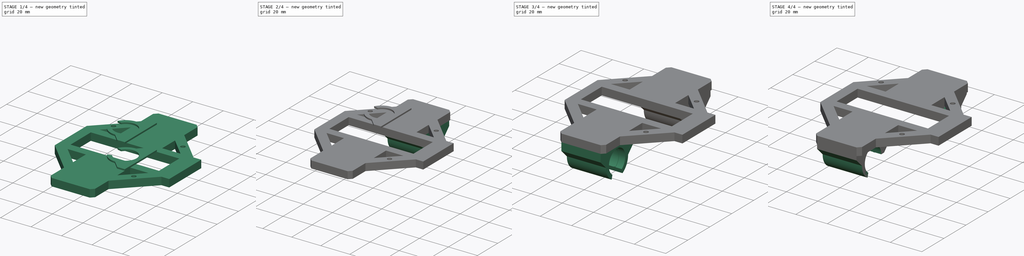
[diagram: build sequence overview — one tinted view per stage of 4, left to right]
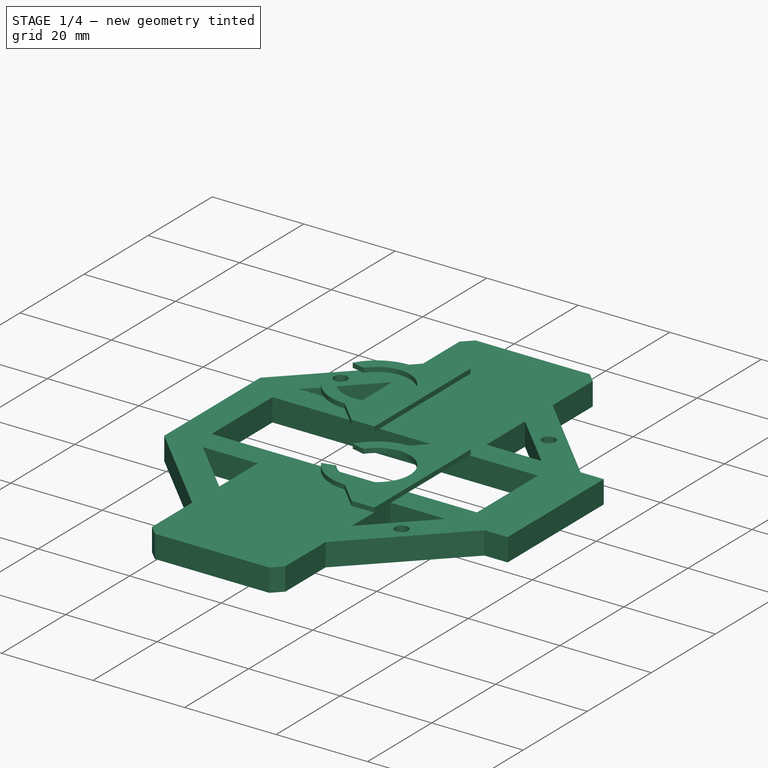
[diagram: stage 1 of 4 — iso view after this stage's code; geometry added in this stage tinted green]
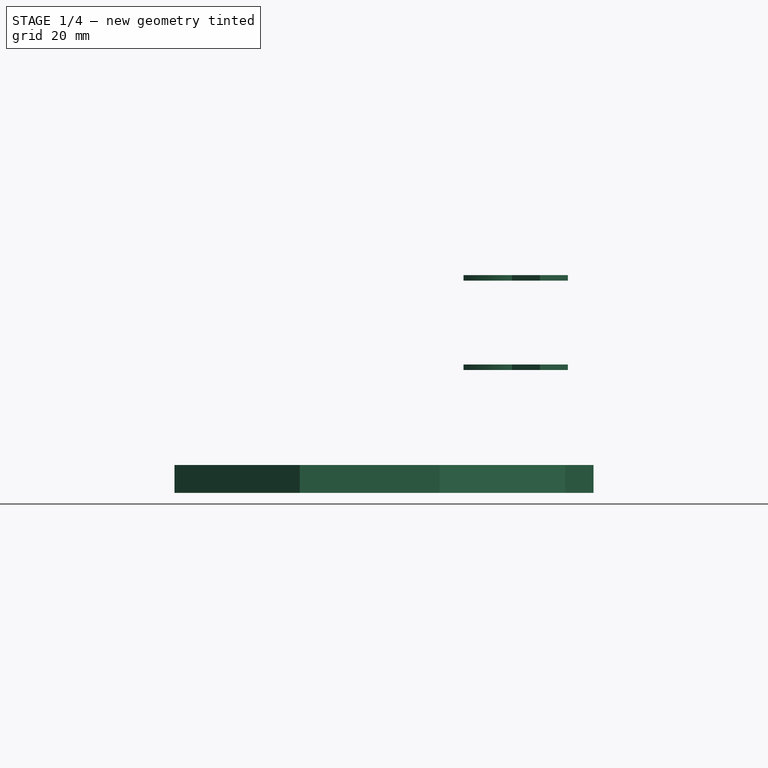
[diagram: stage 1 of 4 — front view after this stage's code; geometry added in this stage tinted green]
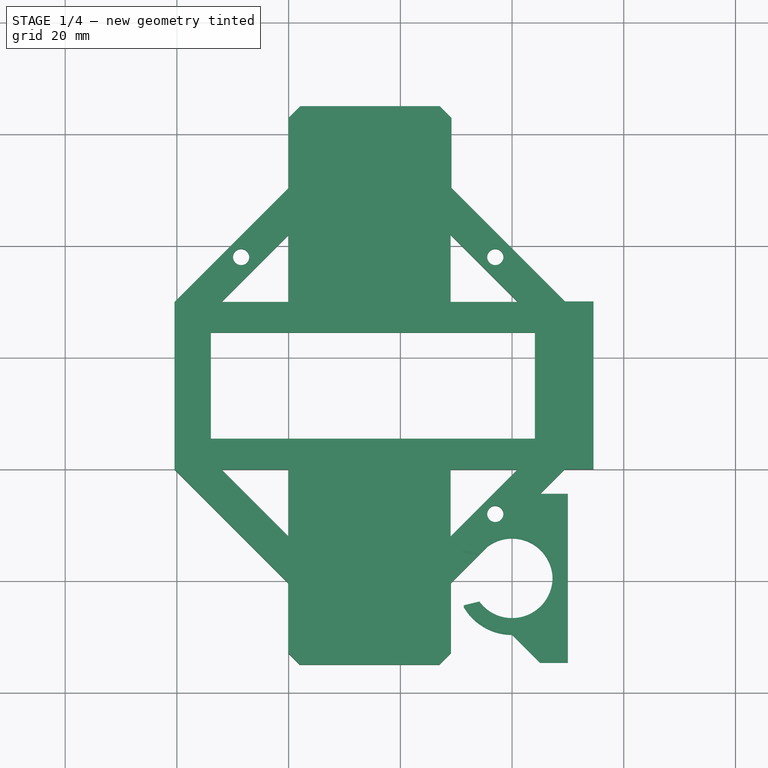
[diagram: stage 1 of 4 — top view after this stage's code; geometry added in this stage tinted green]
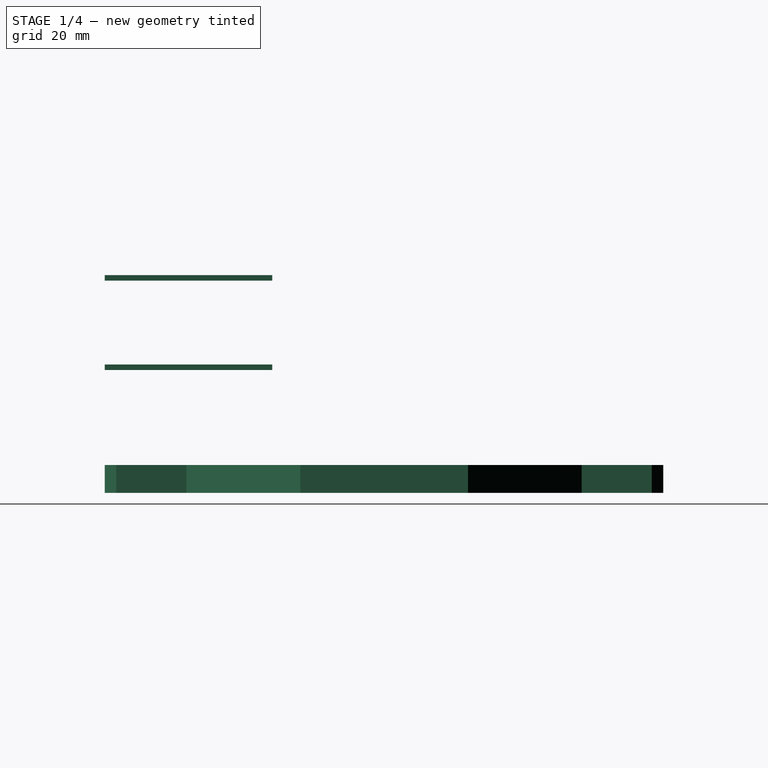
[diagram: stage 1 of 4 — right view after this stage's code; geometry added in this stage tinted green]
FCSTD DOCUMENT  (FreeCAD 0.15R4671 (Git))
Label: XCarrageV6
License: All rights reserved
LicenseURL: http://en.wikipedia.org/wiki/All_rights_reserved
objects: Sketcher::SketchObject×8, PartDesign::Pad×8, Part::MultiFuse×3, Part::Cut×1
note: 28 computed .brp shape members not serialized (recipe doc carries the construction recipe); baked Part::Feature solids carry a one-line shape summary decoded from their .brp

FEATURE [Sketcher::SketchObject] Sketch004  label="Base016"
  Placement = pos=(0,0,32) rot=(0,0,1;0rad)
  sketch-geometry (10):
    g0: LineSegment StartX=-5.8767 StartY=4.24581 StartZ=0 EndX=-8.70018 EndY=4.9302 EndZ=0
    g1: LineSegment StartX=-5.84944 StartY=-4.28328 StartZ=0 EndX=-8.67952 EndY=-4.96648 EndZ=0
    g2: ArcOfCircle CenterX=0 CenterY=0 CenterZ=0 NormalX=0 NormalY=0 NormalZ=1 Radius=10 StartAngle=1.5708 EndAngle=2.62603
    g3: ArcOfCircle CenterX=0 CenterY=0 CenterZ=0 NormalX=0 NormalY=0 NormalZ=1 Radius=10 StartAngle=3.66133 EndAngle=4.71239
    g4: ArcOfCircle CenterX=0 CenterY=0 CenterZ=0 NormalX=0 NormalY=0 NormalZ=1 Radius=7.25 StartAngle=3.77364 EndAngle=8.79912
    g5: LineSegment StartX=4.98503 StartY=-15 StartZ=0 EndX=10 EndY=-15 EndZ=0
    g6: LineSegment StartX=10 StartY=-15 StartZ=0 EndX=10 EndY=15 EndZ=0
    g7: LineSegment StartX=10 StartY=15 StartZ=0 EndX=4.98503 EndY=15 EndZ=0
    g8: LineSegment StartX=-1e-12 StartY=10 StartZ=0 EndX=4.98503 EndY=15 EndZ=0
    g9: LineSegment StartX=3e-12 StartY=-10 StartZ=0 EndX=4.98503 EndY=-15 EndZ=0
  constraints (23):
    c: PointOnObject(g2,g-2)
    c: PointOnObject(g3,g-2)
    c: Coincident(g2,g-1)
    c: Coincident(g2,g0)
    c: Coincident(g3,g-1)
    c: Coincident(g3,g1)
    c: Coincident(g4,g-1)
    c: Coincident(g4,g0)
    c: Coincident(g4,g1)
    c: Radius(g4) = 7.25
    c: Horizontal(g5)
    c: Coincident(g6,g5)
    c: Vertical(g6)
    c: Coincident(g7,g6)
    c: Horizontal(g7)
    c: DistanceY(g6,g5) = -30
    c: DistanceY(g-1,g6) = 15
    c: Coincident(g8,g2)
    c: Coincident(g8,g7)
    c: Coincident(g9,g3)
    c: Coincident(g9,g5)
    c: DistanceX(g-1,g5) = 4.98503
    c: DistanceX(g5,g7) = 0
FEATURE [PartDesign::Pad] Pad004  label="BearingRidge008"
  Length = 1
  Length2 = 100
  Placement = pos=(0,0,32) rot=(0,0,1;0rad)
  Sketch = -> Sketch004
  Type = 0
FEATURE [Sketcher::SketchObject] Sketch005  label="Base017"
  Placement = pos=(0,0,48) rot=(0,0,1;0rad)
  sketch-geometry (10):
    g0: LineSegment StartX=-5.8767 StartY=4.24581 StartZ=0 EndX=-8.70018 EndY=4.9302 EndZ=0
    g1: LineSegment StartX=-5.84944 StartY=-4.28328 StartZ=0 EndX=-8.67952 EndY=-4.96648 EndZ=0
    g2: ArcOfCircle CenterX=0 CenterY=0 CenterZ=0 NormalX=0 NormalY=0 NormalZ=1 Radius=10 StartAngle=1.5708 EndAngle=2.62603
    g3: ArcOfCircle CenterX=0 CenterY=0 CenterZ=0 NormalX=0 NormalY=0 NormalZ=1 Radius=10 StartAngle=3.66133 EndAngle=4.71239
    g4: ArcOfCircle CenterX=0 CenterY=0 CenterZ=0 NormalX=0 NormalY=0 NormalZ=1 Radius=7.25 StartAngle=3.77364 EndAngle=8.79912
    g5: LineSegment StartX=4.98503 StartY=-15 StartZ=0 EndX=10 EndY=-15 EndZ=0
    g6: LineSegment StartX=10 StartY=-15 StartZ=0 EndX=10 EndY=15 EndZ=0
    g7: LineSegment StartX=10 StartY=15 StartZ=0 EndX=4.98503 EndY=15 EndZ=0
    g8: LineSegment StartX=-1e-12 StartY=10 StartZ=0 EndX=4.98503 EndY=15 EndZ=0
    g9: LineSegment StartX=3e-12 StartY=-10 StartZ=0 EndX=4.98503 EndY=-15 EndZ=0
  constraints (23):
    c: PointOnObject(g2,g-2)
    c: PointOnObject(g3,g-2)
    c: Coincident(g2,g-1)
    c: Coincident(g2,g0)
    c: Coincident(g3,g-1)
    c: Coincident(g3,g1)
    c: Coincident(g4,g-1)
    c: Coincident(g4,g0)
    c: Coincident(g4,g1)
    c: Radius(g4) = 7.25
    c: Horizontal(g5)
    c: Coincident(g6,g5)
    c: Vertical(g6)
    c: Coincident(g7,g6)
    c: Horizontal(g7)
    c: DistanceY(g6,g5) = -30
    c: DistanceY(g-1,g6) = 15
    c: Coincident(g8,g2)
    c: Coincident(g8,g7)
    c: Coincident(g9,g3)
    c: Coincident(g9,g5)
    c: DistanceX(g-1,g5) = 4.98503
    c: DistanceX(g5,g7) = 0
FEATURE [PartDesign::Pad] Pad005  label="BearingRidge009"
  Length = 1
  Length2 = 100
  Placement = pos=(0,0,48) rot=(0,0,1;0rad)
  Sketch = -> Sketch005
  Type = 0
FEATURE [PartDesign::Pad] Pad008
  Length = 5
  Length2 = 100
  Placement = pos=(0,0,10) rot=(0,0,1;0rad)
  Sketch = -> Sketch006
  Type = 0
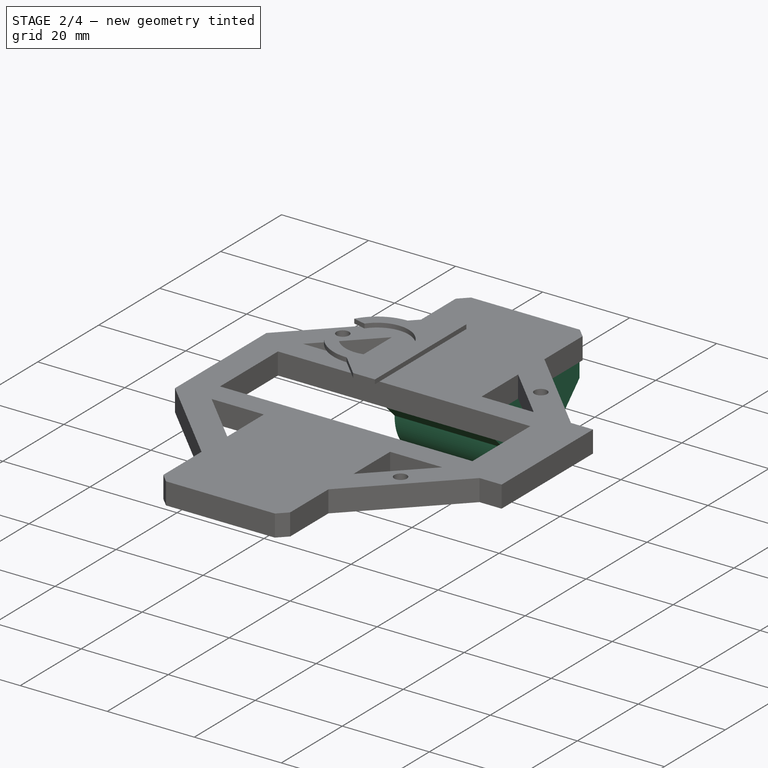
[diagram: stage 2 of 4 — iso view after this stage's code; geometry added in this stage tinted green]
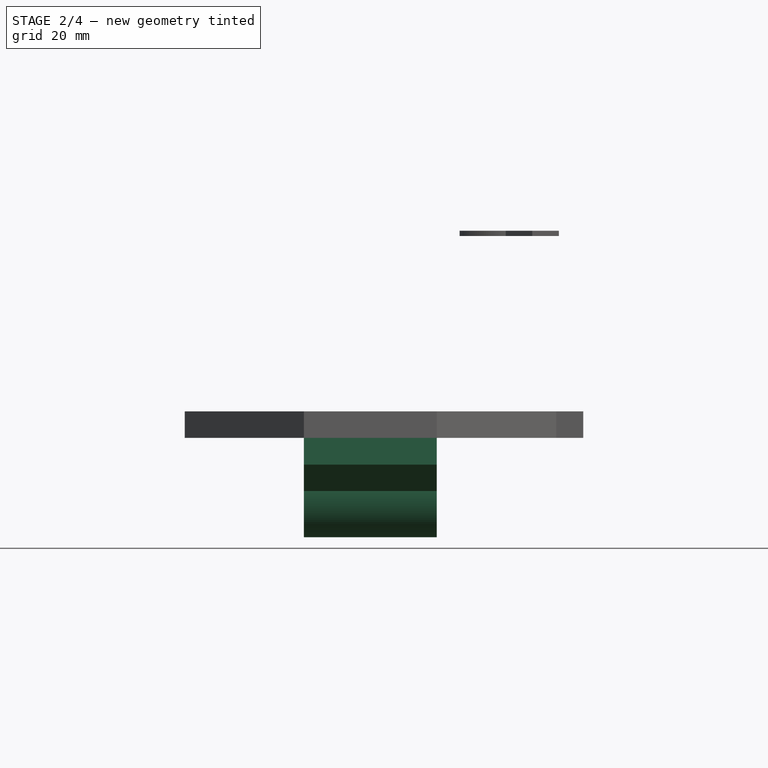
[diagram: stage 2 of 4 — front view after this stage's code; geometry added in this stage tinted green]
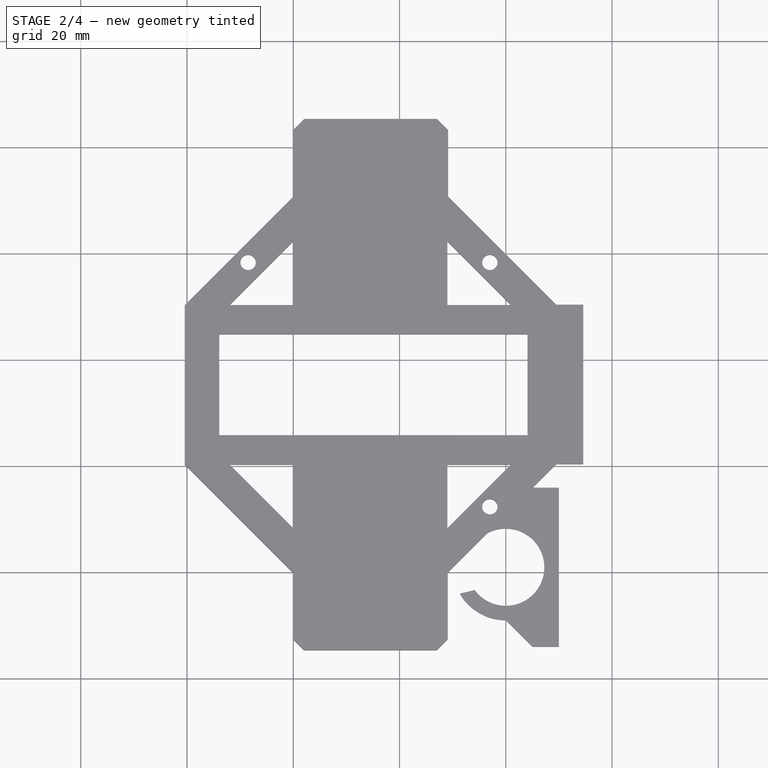
[diagram: stage 2 of 4 — top view after this stage's code; geometry added in this stage tinted green]
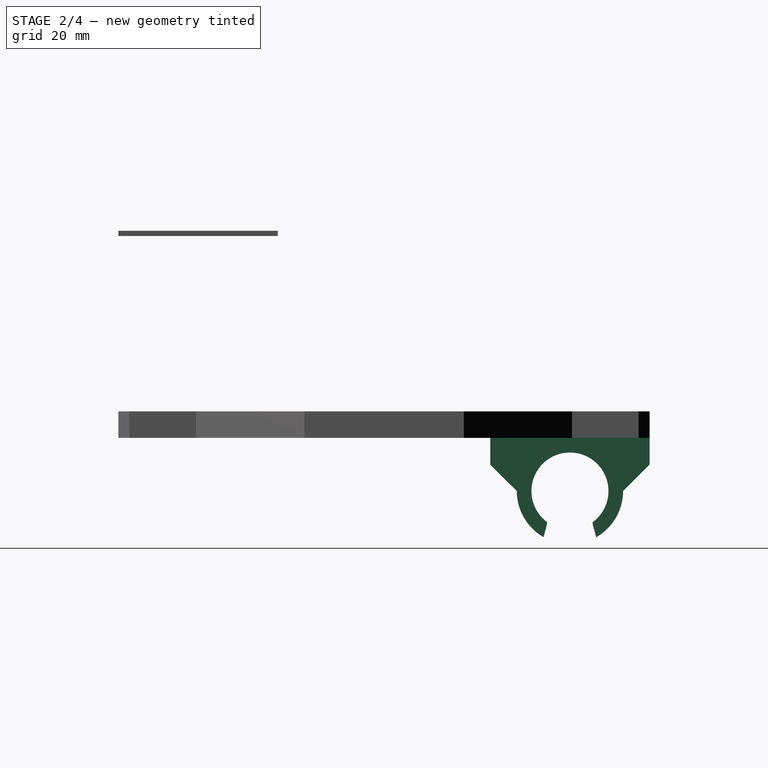
[diagram: stage 2 of 4 — right view after this stage's code; geometry added in this stage tinted green]
FEATURE [Sketcher::SketchObject] Sketch002  label="Base008"
  Placement = pos=(0,0,48) rot=(0,0,1;0rad)
  sketch-geometry (10):
    g0: LineSegment StartX=-5.8767 StartY=4.24581 StartZ=0 EndX=-8.70018 EndY=4.9302 EndZ=0
    g1: LineSegment StartX=-5.84944 StartY=-4.28328 StartZ=0 EndX=-8.67952 EndY=-4.96648 EndZ=0
    g2: ArcOfCircle CenterX=0 CenterY=0 CenterZ=0 NormalX=0 NormalY=0 NormalZ=1 Radius=10 StartAngle=1.5708 EndAngle=2.62603
    g3: ArcOfCircle CenterX=0 CenterY=0 CenterZ=0 NormalX=0 NormalY=0 NormalZ=1 Radius=10 StartAngle=3.66133 EndAngle=4.71239
    g4: ArcOfCircle CenterX=0 CenterY=0 CenterZ=0 NormalX=0 NormalY=0 NormalZ=1 Radius=7.25 StartAngle=3.77364 EndAngle=8.79912
    g5: LineSegment StartX=4.98503 StartY=-15 StartZ=0 EndX=10 EndY=-15 EndZ=0
    g6: LineSegment StartX=10 StartY=-15 StartZ=0 EndX=10 EndY=15 EndZ=0
    g7: LineSegment StartX=10 StartY=15 StartZ=0 EndX=4.98503 EndY=15 EndZ=0
    g8: LineSegment StartX=-1e-12 StartY=10 StartZ=0 EndX=4.98503 EndY=15 EndZ=0
    g9: LineSegment StartX=3e-12 StartY=-10 StartZ=0 EndX=4.98503 EndY=-15 EndZ=0
  constraints (23):
    c: PointOnObject(g2,g-2)
    c: PointOnObject(g3,g-2)
    c: Coincident(g2,g-1)
    c: Coincident(g2,g0)
    c: Coincident(g3,g-1)
    c: Coincident(g3,g1)
    c: Coincident(g4,g-1)
    c: Coincident(g4,g0)
    c: Coincident(g4,g1)
    c: Radius(g4) = 7.25
    c: Horizontal(g5)
    c: Coincident(g6,g5)
    c: Vertical(g6)
    c: Coincident(g7,g6)
    c: Horizontal(g7)
    c: DistanceY(g6,g5) = -30
    c: DistanceY(g-1,g6) = 15
    c: Coincident(g8,g2)
    c: Coincident(g8,g7)
    c: Coincident(g9,g3)
    c: Coincident(g9,g5)
    c: DistanceX(g-1,g5) = 4.98503
    c: DistanceX(g5,g7) = 0
FEATURE [PartDesign::Pad] Pad002  label="BearingRidge003"
  Length = 1
  Length2 = 100
  Placement = pos=(0,0,48) rot=(0,0,1;0rad)
  Sketch = -> Sketch002
  Type = 0
FEATURE [Sketcher::SketchObject] Sketch003  label="Base015"
  Placement = pos=(0,0,28) rot=(0,0,1;0rad)
  sketch-geometry (10):
    g0: LineSegment StartX=-6.11835 StartY=4.25069 StartZ=0 EndX=-8.70018 EndY=4.9302 EndZ=0
    g1: LineSegment StartX=-6.09211 StartY=-4.2882 StartZ=0 EndX=-8.67952 EndY=-4.96648 EndZ=0
    g2: ArcOfCircle CenterX=0 CenterY=0 CenterZ=0 NormalX=0 NormalY=0 NormalZ=1 Radius=10 StartAngle=1.5708 EndAngle=2.62603
    g3: ArcOfCircle CenterX=0 CenterY=0 CenterZ=0 NormalX=0 NormalY=0 NormalZ=1 Radius=10 StartAngle=3.66133 EndAngle=4.71239
    g4: ArcOfCircle CenterX=0 CenterY=0 CenterZ=0 NormalX=0 NormalY=0 NormalZ=1 Radius=7.45 StartAngle=3.75493 EndAngle=8.81759
    g5: LineSegment StartX=4.98503 StartY=-15 StartZ=0 EndX=10 EndY=-15 EndZ=0
    g6: LineSegment StartX=10 StartY=-15 StartZ=0 EndX=10 EndY=15 EndZ=0
    g7: LineSegment StartX=10 StartY=15 StartZ=0 EndX=4.98503 EndY=15 EndZ=0
    g8: LineSegment StartX=-1e-12 StartY=10 StartZ=0 EndX=4.98503 EndY=15 EndZ=0
    g9: LineSegment StartX=3e-12 StartY=-10 StartZ=0 EndX=4.98503 EndY=-15 EndZ=0
  constraints (23):
    c: PointOnObject(g2,g-2)
    c: PointOnObject(g3,g-2)
    c: Coincident(g2,g-1)
    c: Coincident(g2,g0)
    c: Coincident(g3,g-1)
    c: Coincident(g3,g1)
    c: Coincident(g4,g-1)
    c: Coincident(g4,g0)
    c: Coincident(g4,g1)
    c: Radius(g4) = 7.45
    c: Horizontal(g5)
    c: Coincident(g6,g5)
    c: Vertical(g6)
    c: Coincident(g7,g6)
    c: Horizontal(g7)
    c: DistanceY(g6,g5) = -30
    c: DistanceY(g-1,g6) = 15
    c: Coincident(g8,g2)
    c: Coincident(g8,g7)
    c: Coincident(g9,g3)
    c: Coincident(g9,g5)
    c: DistanceX(g-1,g5) = 4.98503
    c: DistanceX(g7,g5) = 0
FEATURE [PartDesign::Pad] Pad003
  Length = 25
  Length2 = 100
  Placement = pos=(0,0,28) rot=(0,0,1;0rad)
  Sketch = -> Sketch003
  Type = 0
FEATURE [Part::MultiFuse] Fusion001  label="BearingLodge003"
  Placement = pos=(15,70,0) rot=(0,-1,0;1.5708rad)
  Shapes = -> [Pad004,Pad005,Pad003]
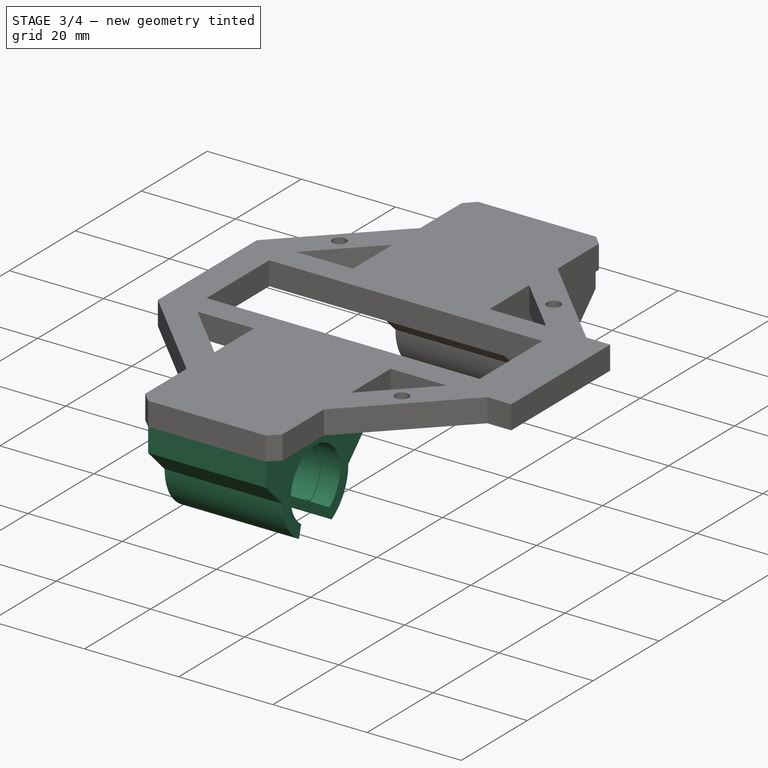
[diagram: stage 3 of 4 — iso view after this stage's code; geometry added in this stage tinted green]
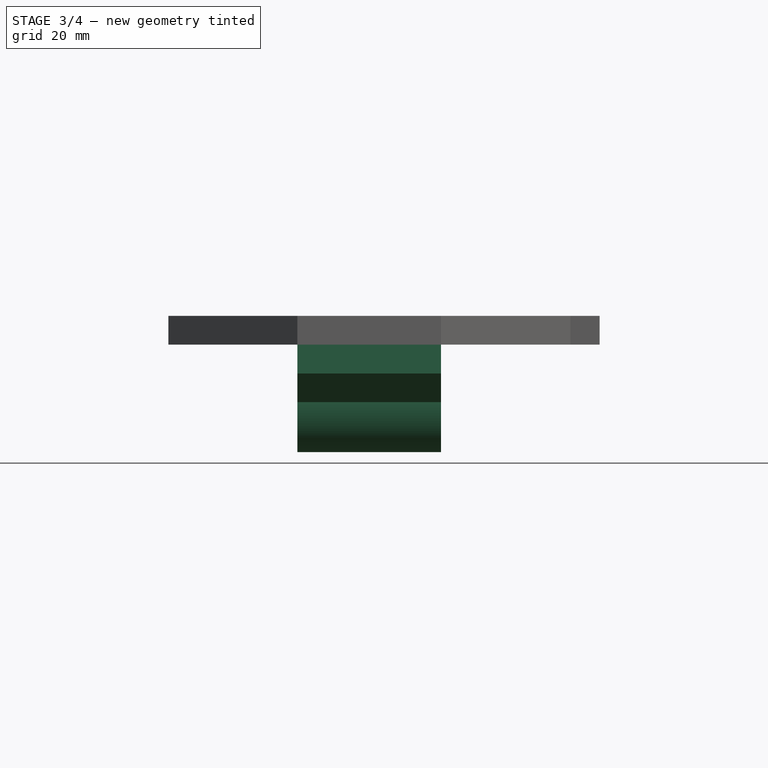
[diagram: stage 3 of 4 — front view after this stage's code; geometry added in this stage tinted green]
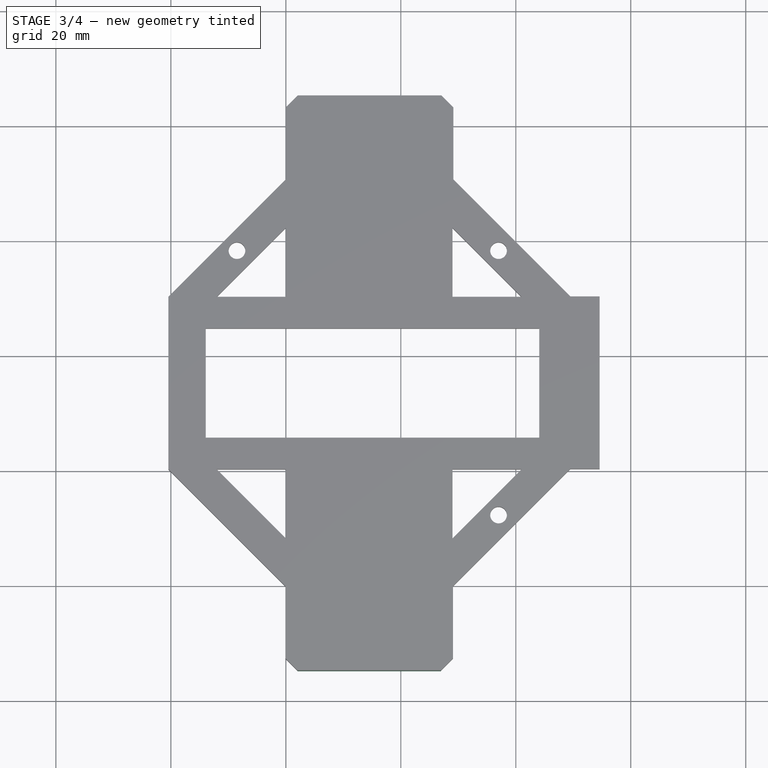
[diagram: stage 3 of 4 — top view after this stage's code; geometry added in this stage tinted green]
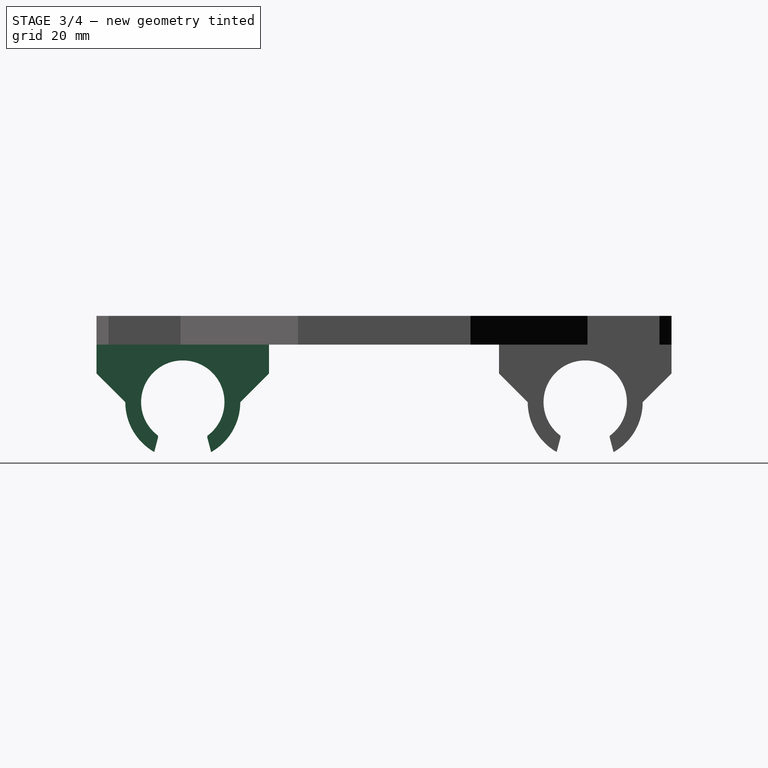
[diagram: stage 3 of 4 — right view after this stage's code; geometry added in this stage tinted green]
FEATURE [Sketcher::SketchObject] Sketch  label="Base004"
  Placement = pos=(0,0,28) rot=(0,0,1;0rad)
  sketch-geometry (10):
    g0: LineSegment StartX=-6.11835 StartY=4.25069 StartZ=0 EndX=-8.70018 EndY=4.9302 EndZ=0
    g1: LineSegment StartX=-6.09211 StartY=-4.2882 StartZ=0 EndX=-8.67952 EndY=-4.96648 EndZ=0
    g2: ArcOfCircle CenterX=0 CenterY=0 CenterZ=0 NormalX=0 NormalY=0 NormalZ=1 Radius=10 StartAngle=1.5708 EndAngle=2.62603
    g3: ArcOfCircle CenterX=0 CenterY=0 CenterZ=0 NormalX=0 NormalY=0 NormalZ=1 Radius=10 StartAngle=3.66133 EndAngle=4.71239
    g4: ArcOfCircle CenterX=0 CenterY=0 CenterZ=0 NormalX=0 NormalY=0 NormalZ=1 Radius=7.45 StartAngle=3.75493 EndAngle=8.81759
    g5: LineSegment StartX=4.98503 StartY=-15 StartZ=0 EndX=10 EndY=-15 EndZ=0
    g6: LineSegment StartX=10 StartY=-15 StartZ=0 EndX=10 EndY=15 EndZ=0
    g7: LineSegment StartX=10 StartY=15 StartZ=0 EndX=4.98503 EndY=15 EndZ=0
    g8: LineSegment StartX=-1e-12 StartY=10 StartZ=0 EndX=4.98503 EndY=15 EndZ=0
    g9: LineSegment StartX=3e-12 StartY=-10 StartZ=0 EndX=4.98503 EndY=-15 EndZ=0
  constraints (23):
    c: PointOnObject(g2,g-2)
    c: PointOnObject(g3,g-2)
    c: Coincident(g2,g-1)
    c: Coincident(g2,g0)
    c: Coincident(g3,g-1)
    c: Coincident(g3,g1)
    c: Coincident(g4,g-1)
    c: Coincident(g4,g0)
    c: Coincident(g4,g1)
    c: Radius(g4) = 7.45
    c: Horizontal(g5)
    c: Coincident(g6,g5)
    c: Vertical(g6)
    c: Coincident(g7,g6)
    c: Horizontal(g7)
    c: DistanceY(g6,g5) = -30
    c: DistanceY(g-1,g6) = 15
    c: Coincident(g8,g2)
    c: Coincident(g8,g7)
    c: Coincident(g9,g3)
    c: Coincident(g9,g5)
    c: DistanceX(g-1,g5) = 4.98503
    c: DistanceX(g7,g5) = 0
FEATURE [PartDesign::Pad] Pad
  Length = 25
  Length2 = 100
  Placement = pos=(0,0,28) rot=(0,0,1;0rad)
  Sketch = -> Sketch
  Type = 0
FEATURE [Sketcher::SketchObject] Sketch001  label="Base007"
  Placement = pos=(0,0,32) rot=(0,0,1;0rad)
  sketch-geometry (10):
    g0: LineSegment StartX=-5.8767 StartY=4.24581 StartZ=0 EndX=-8.70018 EndY=4.9302 EndZ=0
    g1: LineSegment StartX=-5.84944 StartY=-4.28328 StartZ=0 EndX=-8.67952 EndY=-4.96648 EndZ=0
    g2: ArcOfCircle CenterX=0 CenterY=0 CenterZ=0 NormalX=0 NormalY=0 NormalZ=1 Radius=10 StartAngle=1.5708 EndAngle=2.62603
    g3: ArcOfCircle CenterX=0 CenterY=0 CenterZ=0 NormalX=0 NormalY=0 NormalZ=1 Radius=10 StartAngle=3.66133 EndAngle=4.71239
    g4: ArcOfCircle CenterX=0 CenterY=0 CenterZ=0 NormalX=0 NormalY=0 NormalZ=1 Radius=7.25 StartAngle=3.77364 EndAngle=8.79912
    g5: LineSegment StartX=4.98503 StartY=-15 StartZ=0 EndX=10 EndY=-15 EndZ=0
    g6: LineSegment StartX=10 StartY=-15 StartZ=0 EndX=10 EndY=15 EndZ=0
    g7: LineSegment StartX=10 StartY=15 StartZ=0 EndX=4.98503 EndY=15 EndZ=0
    g8: LineSegment StartX=-1e-12 StartY=10 StartZ=0 EndX=4.98503 EndY=15 EndZ=0
    g9: LineSegment StartX=3e-12 StartY=-10 StartZ=0 EndX=4.98503 EndY=-15 EndZ=0
  constraints (23):
    c: PointOnObject(g2,g-2)
    c: PointOnObject(g3,g-2)
    c: Coincident(g2,g-1)
    c: Coincident(g2,g0)
    c: Coincident(g3,g-1)
    c: Coincident(g3,g1)
    c: Coincident(g4,g-1)
    c: Coincident(g4,g0)
    c: Coincident(g4,g1)
    c: Radius(g4) = 7.25
    c: Horizontal(g5)
    c: Coincident(g6,g5)
    c: Vertical(g6)
    c: Coincident(g7,g6)
    c: Horizontal(g7)
    c: DistanceY(g6,g5) = -30
    c: DistanceY(g-1,g6) = 15
    c: Coincident(g8,g2)
    c: Coincident(g8,g7)
    c: Coincident(g9,g3)
    c: Coincident(g9,g5)
    c: DistanceX(g-1,g5) = 4.98503
    c: DistanceX(g5,g7) = 0
FEATURE [PartDesign::Pad] Pad001  label="BearingRidge002"
  Length = 1
  Length2 = 100
  Placement = pos=(0,0,32) rot=(0,0,1;0rad)
  Sketch = -> Sketch001
  Type = 0
FEATURE [Part::MultiFuse] Fusion  label="BearingLodge"
  Placement = pos=(15,0,0) rot=(0,-1,0;1.5708rad)
  Shapes = -> [Pad001,Pad002,Pad]
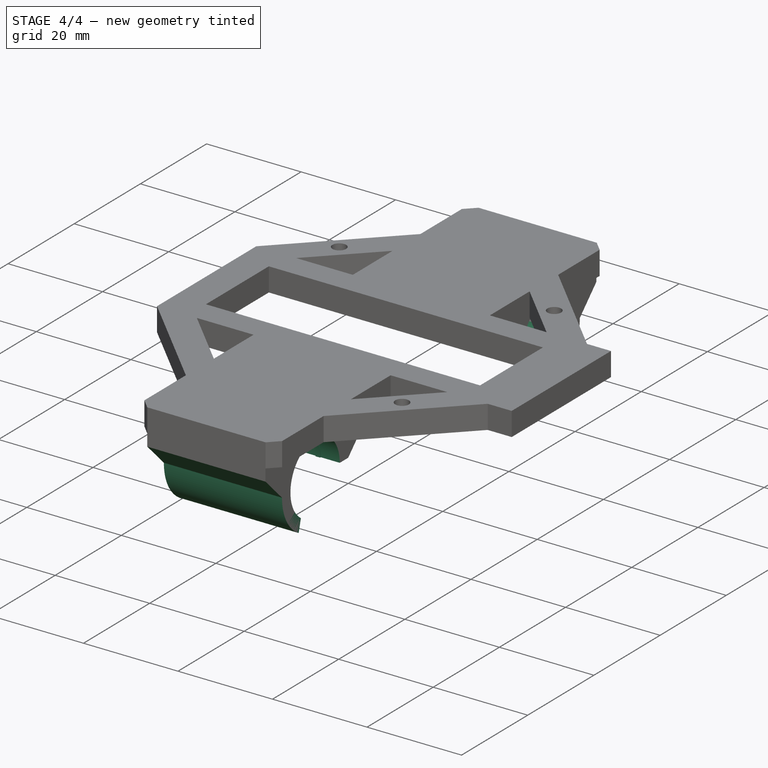
[diagram: stage 4 of 4 — iso view after this stage's code; geometry added in this stage tinted green]
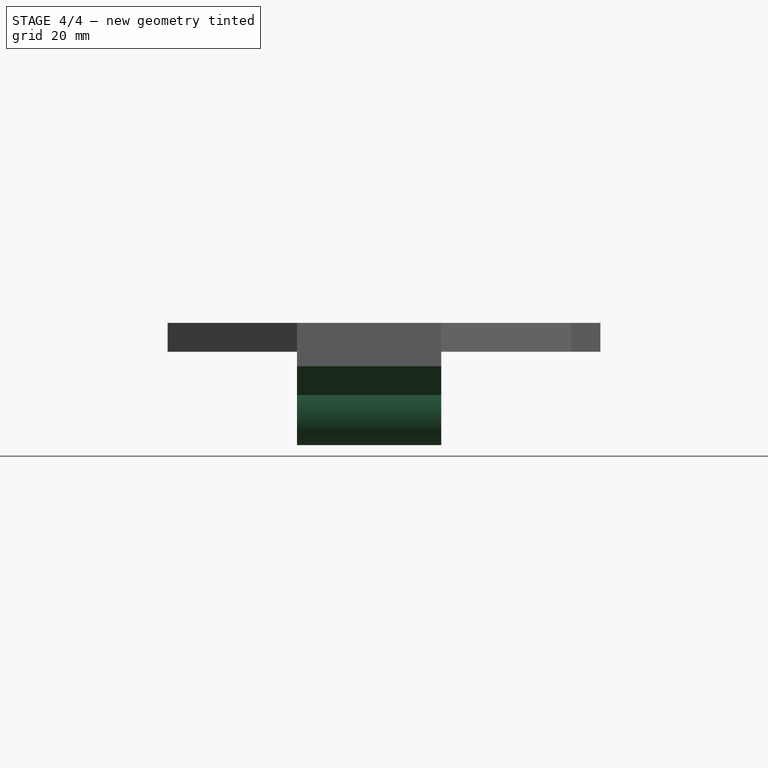
[diagram: stage 4 of 4 — front view after this stage's code; geometry added in this stage tinted green]
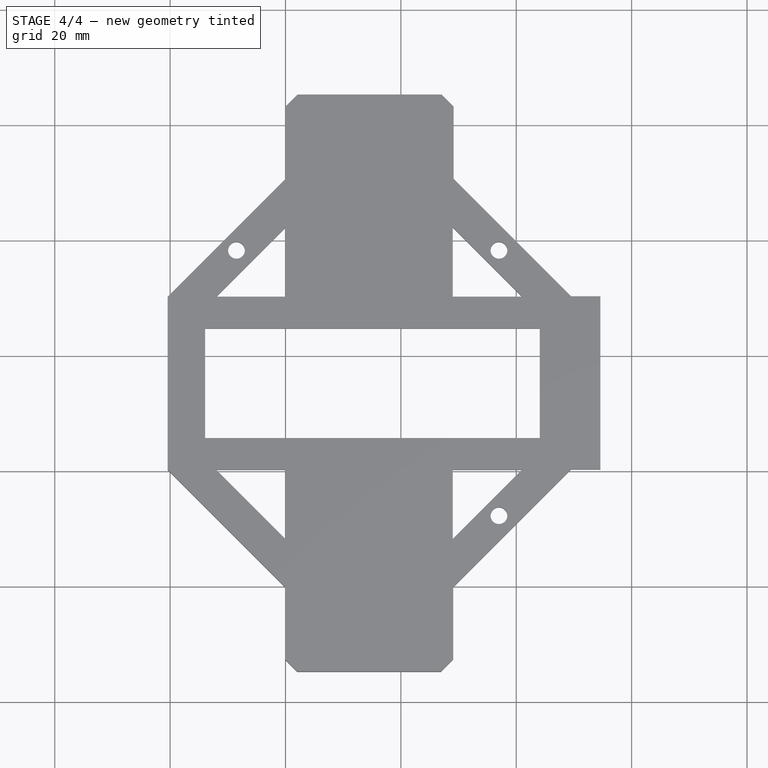
[diagram: stage 4 of 4 — top view after this stage's code; geometry added in this stage tinted green]
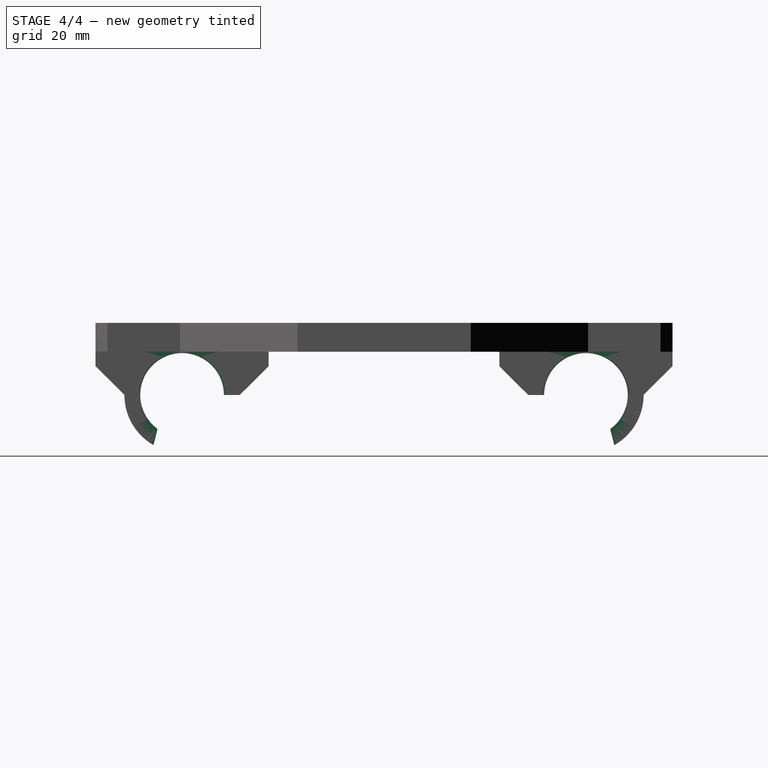
[diagram: stage 4 of 4 — right view after this stage's code; geometry added in this stage tinted green]
FEATURE [Sketcher::SketchObject] Sketch006
  Placement = pos=(0,0,10) rot=(0,0,1;0rad)
  sketch-geometry (37):
    g0: LineSegment StartX=-37.9256 StartY=85 StartZ=0 EndX=-12.9256 EndY=85 EndZ=0
    g1: LineSegment StartX=-12.9256 StartY=85 StartZ=0 EndX=-10.8513 EndY=82.9256 EndZ=0
    g2: LineSegment StartX=14.5743 StartY=50.0372 StartZ=0 EndX=14.5743 EndY=20.0372 EndZ=0
    g3: LineSegment StartX=-60.4256 StartY=19.9628 StartZ=0 EndX=-60.4256 EndY=49.9628 EndZ=0
    g4: LineSegment StartX=-40 StartY=82.9256 StartZ=0 EndX=-37.9256 EndY=85 EndZ=0
    g5: LineSegment StartX=-40.0744 StartY=-12.9256 StartZ=0 EndX=-38 EndY=-15 EndZ=0
    g6: LineSegment StartX=-38 StartY=-15 StartZ=0 EndX=-13 EndY=-15 EndZ=0
    g7: LineSegment StartX=-13 StartY=-15 StartZ=0 EndX=-10.9256 EndY=-12.9256 EndZ=0
    g8: LineSegment StartX=-53.9256 StartY=44.4628 StartZ=0 EndX=4.07432 EndY=44.4628 EndZ=0
    g9: LineSegment StartX=4.07432 StartY=44.4628 StartZ=0 EndX=4.07432 EndY=25.4628 EndZ=0
    g10: LineSegment StartX=4.07432 StartY=25.4628 StartZ=0 EndX=-53.9256 EndY=25.4628 EndZ=0
    g11: LineSegment StartX=-53.9256 StartY=25.4628 StartZ=0 EndX=-53.9256 EndY=44.4628 EndZ=0
    g12: LineSegment StartX=-60.4256 StartY=49.9628 StartZ=0 EndX=-40 EndY=70.3884 EndZ=0
    g13: LineSegment StartX=-40 StartY=70.3884 StartZ=0 EndX=-40 EndY=82.9256 EndZ=0
    g14: LineSegment StartX=-10.8513 StartY=82.9256 StartZ=0 EndX=-10.8513 EndY=70.3884 EndZ=0
    g15: LineSegment StartX=-10.8513 StartY=70.3884 StartZ=0 EndX=9.49996 EndY=50.0372 EndZ=0
    g16: LineSegment StartX=9.49996 StartY=50.0372 StartZ=0 EndX=14.5743 EndY=50.0372 EndZ=0
    g17: LineSegment StartX=-60.4256 StartY=19.9628 StartZ=0 EndX=-40.0744 EndY=-0.388421 EndZ=0
    g18: LineSegment StartX=-40.0744 StartY=-0.388421 StartZ=0 EndX=-40.0744 EndY=-12.9256 EndZ=0
    g19: LineSegment StartX=14.5743 StartY=20.0372 StartZ=0 EndX=9.49996 EndY=20.0372 EndZ=0
    g20: LineSegment StartX=9.49996 StartY=20.0372 StartZ=0 EndX=-10.9256 EndY=-0.388421 EndZ=0
    g21: LineSegment StartX=-10.9256 StartY=-0.388421 StartZ=0 EndX=-10.9256 EndY=-12.9256 EndZ=0
    g22: LineSegment StartX=-52 StartY=19.9628 StartZ=0 EndX=-40 EndY=19.9628 EndZ=0
    g23: LineSegment StartX=-40 StartY=19.9628 StartZ=0 EndX=-40 EndY=7.96282 EndZ=0
    g24: LineSegment StartX=-40 StartY=7.96282 StartZ=0 EndX=-52 EndY=19.9628 EndZ=0
    g25: LineSegment StartX=-11 StartY=19.9628 StartZ=0 EndX=-11 EndY=7.96282 EndZ=0
    g26: LineSegment StartX=-11 StartY=7.96282 StartZ=0 EndX=1 EndY=19.9628 EndZ=0
    g27: LineSegment StartX=1 StartY=19.9628 StartZ=0 EndX=-11 EndY=19.9628 EndZ=0
    g28: LineSegment StartX=-40 StartY=61.9628 StartZ=0 EndX=-40 EndY=49.9628 EndZ=0
    g29: LineSegment StartX=-40 StartY=49.9628 StartZ=0 EndX=-52 EndY=49.9628 EndZ=0
    g30: LineSegment StartX=-52 StartY=49.9628 StartZ=0 EndX=-40 EndY=61.9628 EndZ=0
    g31: LineSegment StartX=-11 StartY=61.9628 StartZ=0 EndX=-11 EndY=49.9628 EndZ=0
    g32: LineSegment StartX=-11 StartY=49.9628 StartZ=0 EndX=1 EndY=49.9628 EndZ=0
    g33: LineSegment StartX=1 StartY=49.9628 StartZ=0 EndX=-11 EndY=61.9628 EndZ=0
    g34: Circle CenterX=-48.5 CenterY=58 CenterZ=0 NormalX=0 NormalY=0 NormalZ=1 Radius=1.45
    g35: Circle CenterX=-3 CenterY=58 CenterZ=0 NormalX=0 NormalY=0 NormalZ=1 Radius=1.45
    g36: Circle CenterX=-3 CenterY=12 CenterZ=0 NormalX=0 NormalY=0 NormalZ=1 Radius=1.45
  constraints (114):
    c: Horizontal(g0)
    c: Coincident(g0,g1)
    c: Vertical(g3)
    c: Vertical(g2)
    c: Coincident(g4,g0)
    c: Angle(g0,g1) = 2.35619
    c: Equal(g4,g1)
    c: Perpendicular(g1,g4)
    c: DistanceX(g0,g0) = -25
    c: DistanceX(g0) = -37.9256
    c: DistanceY(g0) = 85
    c: Coincident(g5,g6)
    c: Coincident(g6,g7)
    c: Horizontal(g6)
    c: Perpendicular(g5,g7)
    c: Parallel(g7,g4)
    c: Equal(g5,g7)
    c: Equal(g7,g1)
    c: Equal(g6,g0)
    c: DistanceX(g-1,g6) = -13
    c: DistanceY(g6,g0) = 100
    c: Coincident(g8,g9)
    c: Coincident(g9,g10)
    c: Coincident(g10,g11)
    c: Coincident(g11,g8)
    c: Horizontal(g8)
    c: Horizontal(g10)
    c: Vertical(g9)
    c: Vertical(g11)
    c: DistanceY(g9) = -19
    c: DistanceY(g2) = -30
    c: DistanceX(g9,g2) = 10.5
    c: DistanceX(g-1,g8) = -53.9256
    c: DistanceX(g-1,g3) = -60.4256
    c: DistanceX(g-1,g2) = 14.5743
    c: Coincident(g12,g13)
    c: Coincident(g13,g4)
    c: Vertical(g13)
    c: Coincident(g1,g14)
    c: Vertical(g14)
    c: Coincident(g14,g15)
    c: Coincident(g15,g16)
    c: Coincident(g16,g2)
    c: Horizontal(g16)
    c: Coincident(g17,g18)
    c: Coincident(g18,g5)
    c: Vertical(g18)
    c: Coincident(g2,g19)
    c: Horizontal(g19)
    c: Coincident(g19,g20)
    c: Coincident(g20,g21)
    c: Coincident(g21,g7)
    c: Vertical(g21)
    c: Equal(g21,g18)
    c: Equal(g18,g13)
    c: Equal(g13,g14)
    c: Equal(g16,g19)
    c: Coincident(g12,g3)
    c: Coincident(g17,g3)
    c: Angle(g17,g3) = 2.35619
    c: DistanceY(g3,g10) = 5.5
    c: Angle(g20,g19) = 2.35619
    c: Coincident(g22,g23)
    c: Coincident(g23,g24)
    c: Coincident(g25,g26)
    c: Coincident(g26,g27)
    c: Coincident(g27,g25)
    c: Coincident(g28,g29)
    c: Horizontal(g29)
    c: Coincident(g29,g30)
    c: Coincident(g30,g28)
    c: Vertical(g31)
    c: Coincident(g31,g32)
    c: Coincident(g32,g33)
    c: Coincident(g33,g31)
    c: Coincident(g22,g24)
    c: DistanceY(g22,g10) = 5.5
    c: Horizontal(g22)
    c: Vertical(g23)
    c: Horizontal(g27)
    c: Vertical(g25)
    c: Horizontal(g32)
    c: Vertical(g28)
    c: DistanceY(g32,g8) = -5.5
    c: DistanceY(g26,g9) = 5.5
    c: Equal(g22,g29)
    c: Equal(g29,g32)
    c: Equal(g32,g27)
    c: Equal(g25,g23)
    c: Equal(g23,g28)
    c: Equal(g28,g31)
    c: DistanceX(g22,g28) = 0
    c: DistanceX(g-1,g28) = -40
    c: DistanceX(g31,g25) = 0
    c: DistanceX(g-1,g25) = -11
    c: DistanceY(g28,g31) = 0
    c: Parallel(g12,g30)
    c: Parallel(g30,g26)
    c: Parallel(g26,g20)
    c: Parallel(g33,g15)
    c: Parallel(g15,g24)
    c: Parallel(g24,g17)
    c: Perpendicular(g17,g20)
    c: DistanceY(g3,g29) = 0
    c: DistanceY(g28) = -12
    c: DistanceX(g12,g28) = 0
    c: Radius(g36) = 1.45
    c: Equal(g36,g35)
    c: Equal(g36,g34)
    c: DistanceY(g34,g35) = 0
    c: DistanceX(g35,g36) = 0
    c: DistanceX(g34,g35) = 45.5
    c: DistanceX(g-1,g35) = -3
    c: DistanceY(g-1,g35) = 58
FEATURE [Sketcher::SketchObject] Sketch009
  sketch-geometry (4):
    g0: LineSegment StartX=-86.8508 StartY=70 StartZ=0 EndX=47.709 EndY=70 EndZ=0
    g1: LineSegment StartX=47.709 StartY=70 StartZ=0 EndX=47.709 EndY=0 EndZ=0
    g2: LineSegment StartX=47.709 StartY=0 StartZ=0 EndX=-86.8508 EndY=0 EndZ=0
    g3: LineSegment StartX=-86.8508 StartY=0 StartZ=0 EndX=-86.8508 EndY=70 EndZ=0
  constraints (10):
    c: Coincident(g0,g1)
    c: Coincident(g1,g2)
    c: Coincident(g2,g3)
    c: Coincident(g3,g0)
    c: Horizontal(g0)
    c: Horizontal(g2)
    c: Vertical(g1)
    c: Vertical(g3)
    c: PointOnObject(g1,g-1)
    c: DistanceY(g1,g0) = 70
FEATURE [PartDesign::Pad] Pad007
  Length = 10
  Length2 = 100
  Reversed = true
  Sketch = -> Sketch009
  Type = 0
FEATURE [Part::MultiFuse] Fusion002
  Shapes = -> [Fusion,Fusion001]
FEATURE [Part::Cut] Cut
  Base = -> Fusion002
  Placement = pos=(0,0,2.5) rot=(0,0,1;0rad)
  Tool = -> Pad007
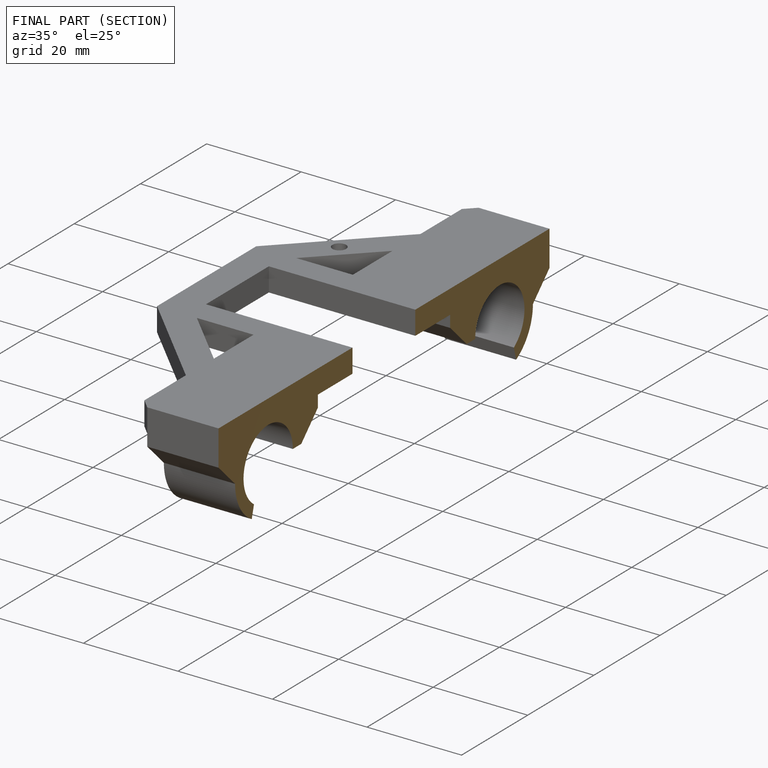
[diagram: finished part — half-section view (interior)]
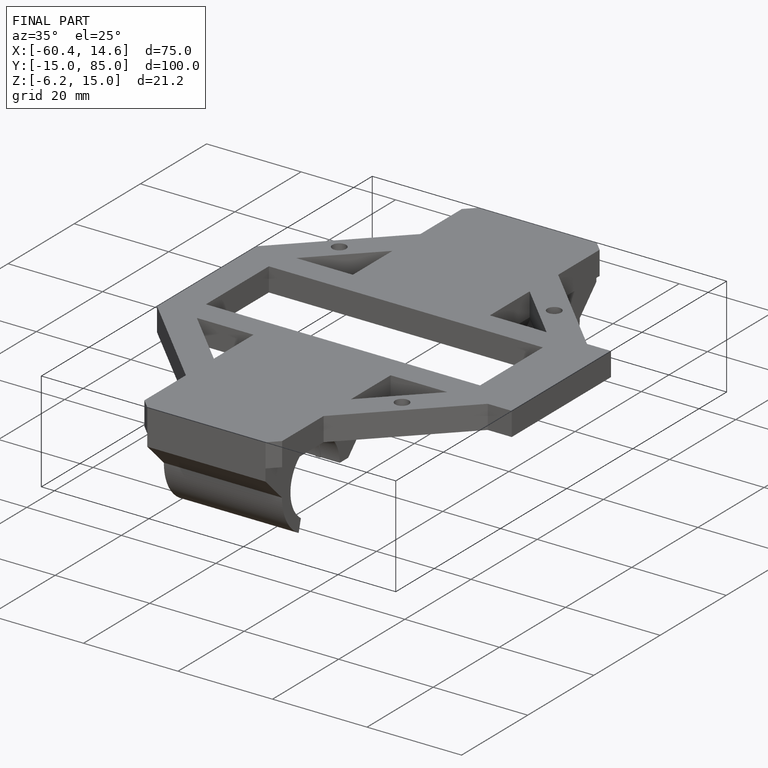
[diagram: finished part — iso view with bounding-box wireframe]
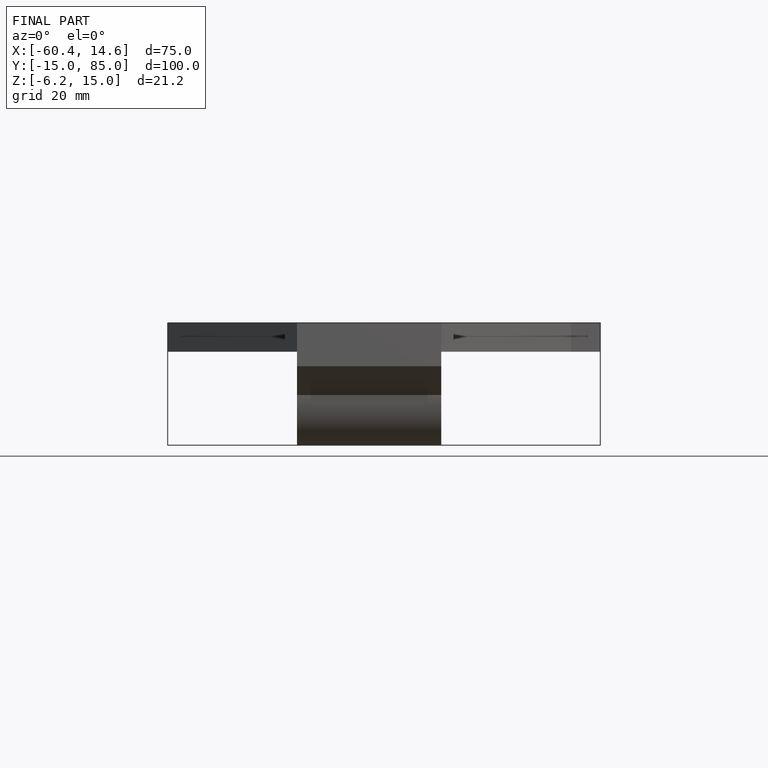
[diagram: finished part — front view with bounding-box wireframe]
